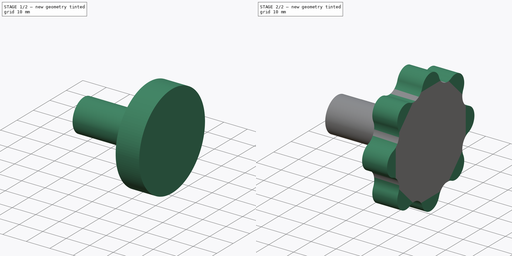
[diagram: build sequence overview — one tinted view per stage of 2, left to right]
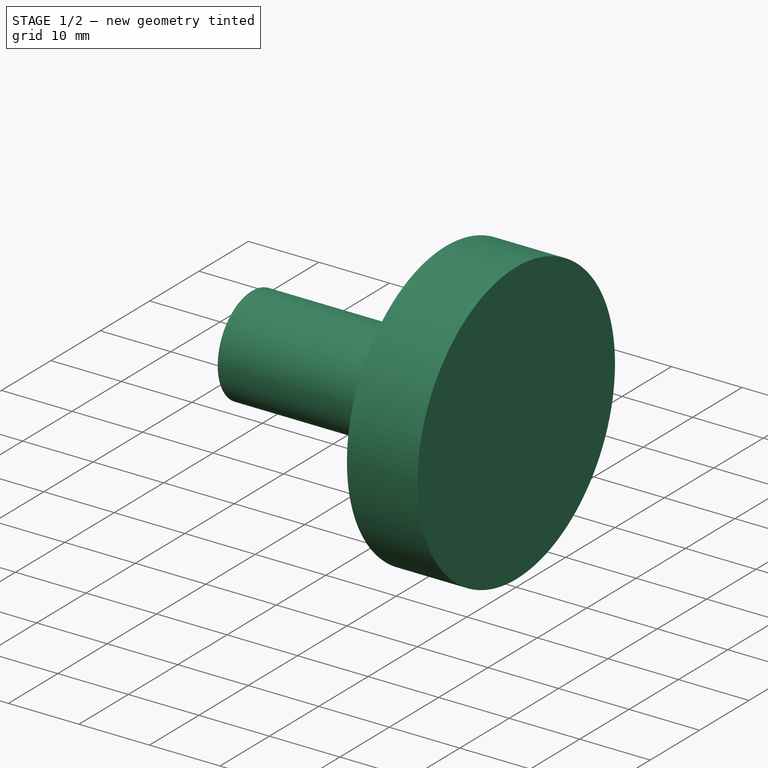
[diagram: stage 1 of 2 — iso view after this stage's code; geometry added in this stage tinted green]
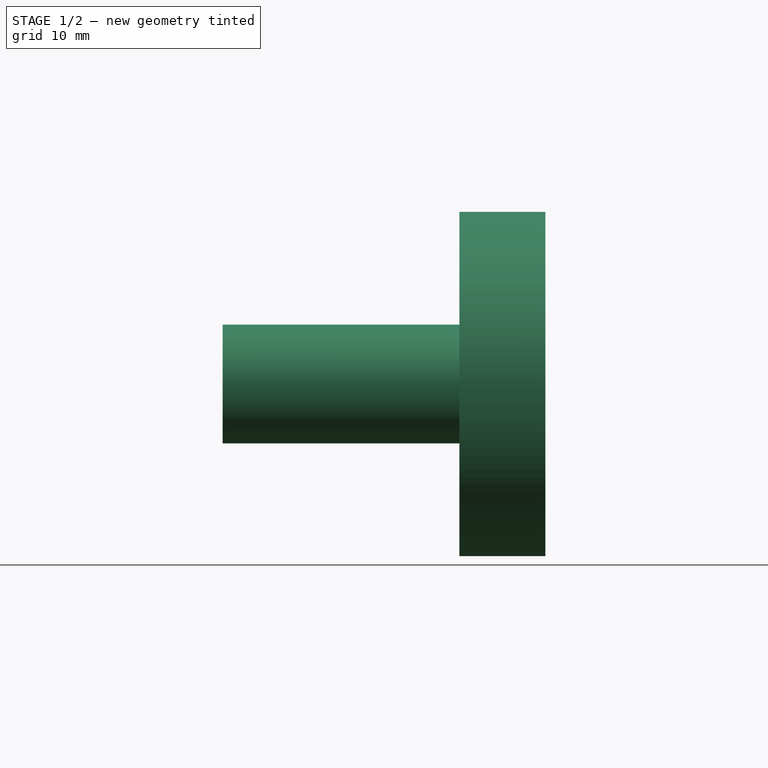
[diagram: stage 1 of 2 — front view after this stage's code; geometry added in this stage tinted green]
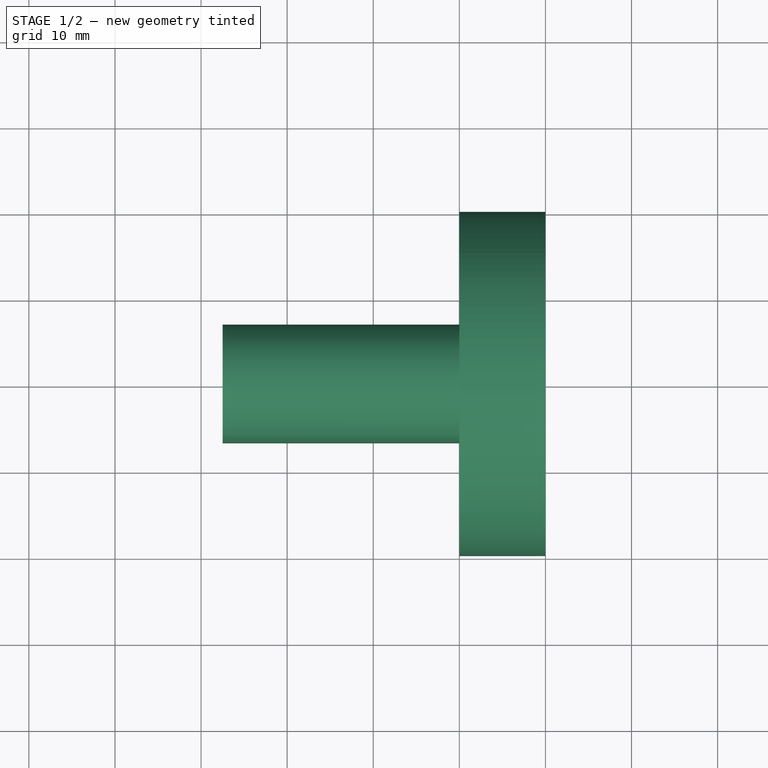
[diagram: stage 1 of 2 — top view after this stage's code; geometry added in this stage tinted green]
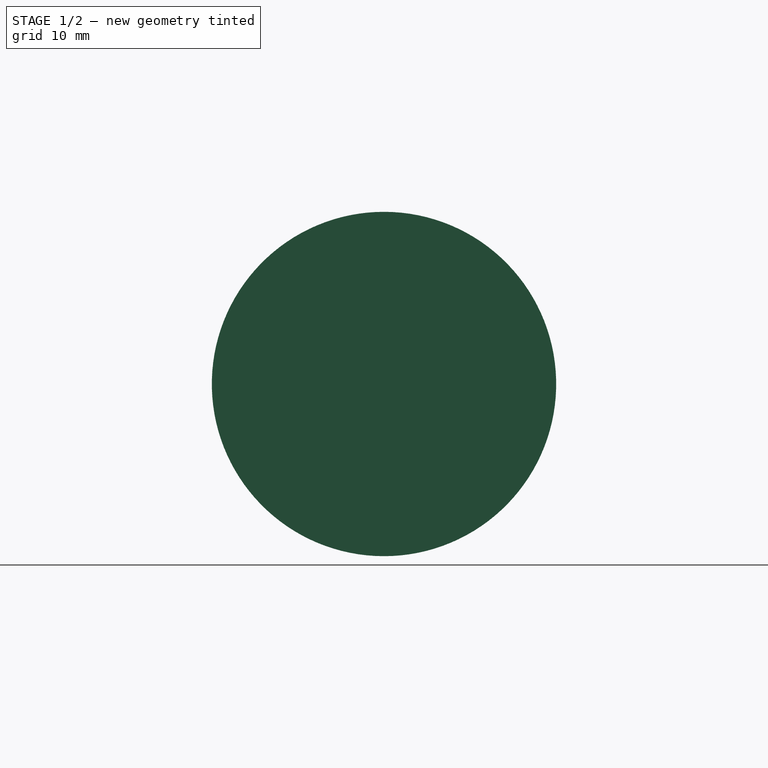
[diagram: stage 1 of 2 — right view after this stage's code; geometry added in this stage tinted green]
FCSTD DOCUMENT  (FreeCAD 1.1R39747 (Git))
Label: Резьба
License: All rights reserved
LicenseURL: https://en.wikipedia.org/wiki/All_rights_reserved
objects: Sketcher::SketchObject×2, App::Point×1, PartDesign::Revolution×1, PartDesign::Pad×1, PartDesign::Body×1
note: 11 computed .brp shape members not serialized (recipe doc carries the construction recipe); baked Part::Feature solids carry a one-line shape summary decoded from their .brp

FEATURE [App::Point] Origin001
  Role = Origin
FEATURE [Sketcher::SketchObject] Sketch
  ArcFitTolerance = 1e-06
  AttachmentSupport = -> [XZ_Plane]
  ExternalTypes = [0]
  FullyConstrained = true
  MakeInternals = false
  MapMode = 5
  Placement = pos=(0,0,0) rot=(1,0,0;1.5708rad)
  expr: Constraints[14] = 20.5 mm + 7 mm
  sketch-geometry (6):
    g0: LineSegment StartX=-37.5 StartY=6.9 StartZ=0 EndX=-10 EndY=6.9 EndZ=0
    g1: LineSegment StartX=-10 StartY=6.9 StartZ=0 EndX=-10 EndY=20 EndZ=0
    g2: LineSegment StartX=-10 StartY=20 StartZ=0 EndX=0 EndY=20 EndZ=0
    g3: LineSegment StartX=0 StartY=20 StartZ=0 EndX=0 EndY=0 EndZ=0
    g4: LineSegment StartX=-37.5 StartY=6.9 StartZ=0 EndX=-37.5 EndY=0 EndZ=0
    g5: LineSegment StartX=-37.5 StartY=0 StartZ=0 EndX=0 EndY=0 EndZ=0
  constraints (18):
    c: Coincident(g0,g1)
    c: Coincident(g1,g2)
    c: Horizontal(g2)
    c: Coincident(g2,g3)
    c: PointOnObject(g3,g-1)
    c: Coincident(g4,g5)
    c: Coincident(g5,g3)
    c: Horizontal(g5)
    c: Vertical(g4)
    c: Coincident(g0,g4)
    c: Horizontal(g0)
    c: Vertical(g1)
    c: DistanceX(g2,g2) = 10
    c: Vertical(g3)
    c: DistanceX(g0,g0) = 27.5
    c: PointOnObject(g2,g-2)
    c: Distance(g4,g4) = 6.9
    c: DistanceY(g3,g3) = 20
FEATURE [PartDesign::Revolution] Revolution
  Angle = 360
  Angle2 = 60
  Axis = (1,0,0)
  Base = (0,0,0)
  Placement = pos=(0,0,0) rot=(1,0,0;1.5708rad)
  Profile = -> Sketch
  ReferenceAxis = -> Sketch [H_Axis]
  Refine = true
  Suppressed = false
  Type = 0
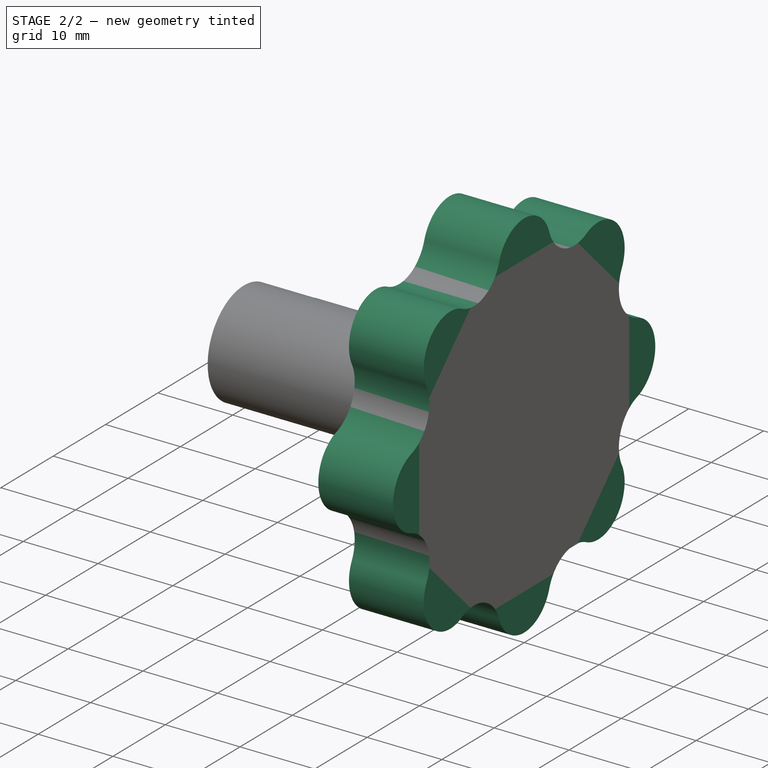
[diagram: stage 2 of 2 — iso view after this stage's code; geometry added in this stage tinted green]
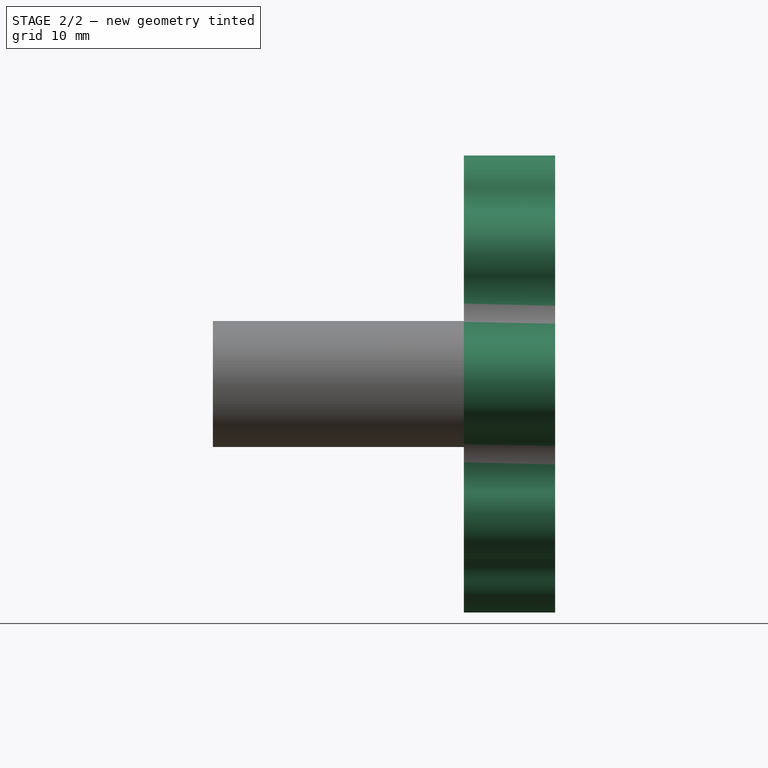
[diagram: stage 2 of 2 — front view after this stage's code; geometry added in this stage tinted green]
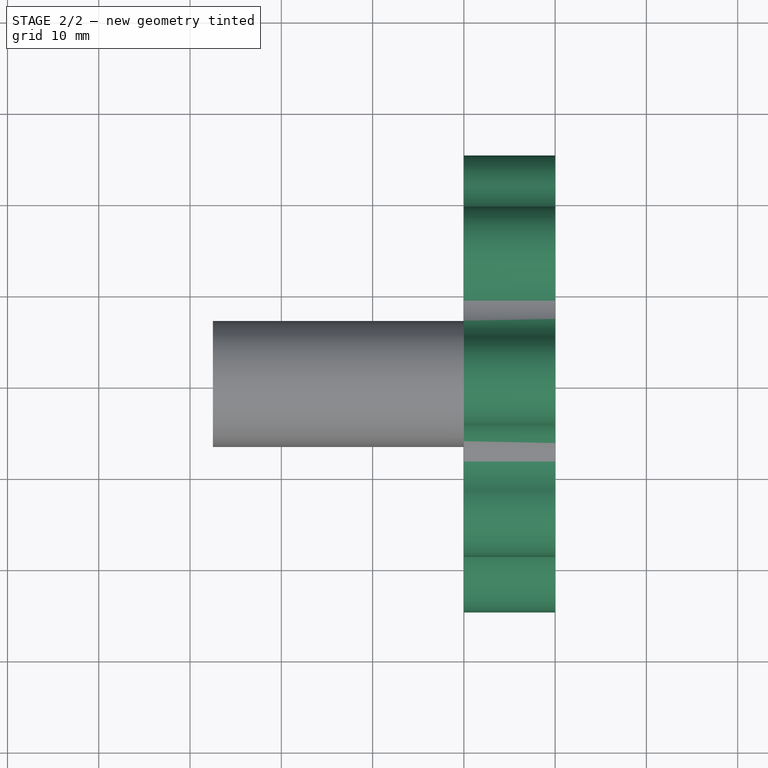
[diagram: stage 2 of 2 — top view after this stage's code; geometry added in this stage tinted green]
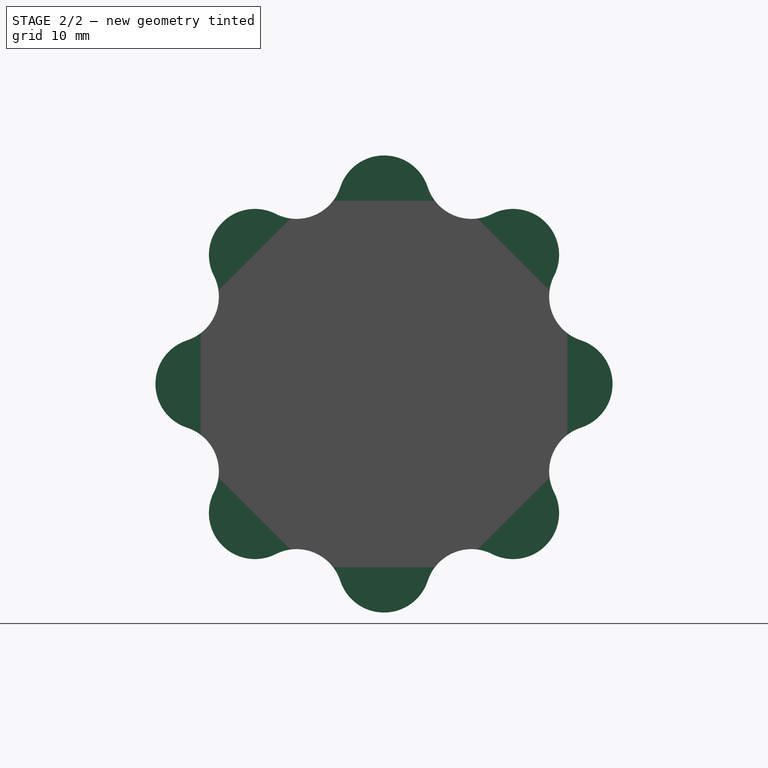
[diagram: stage 2 of 2 — right view after this stage's code; geometry added in this stage tinted green]
FEATURE [Sketcher::SketchObject] Sketch001
  ArcFitTolerance = 1e-06
  AttachmentSupport = -> [Revolution]
  ExternalGeometry = -> [Revolution]
  ExternalTypes = [0]
  FullyConstrained = true
  MakeInternals = false
  MapMode = 5
  Placement = pos=(0,0,0) rot=(0.707107,0,0.707107;3.14159rad)
  sketch-geometry (24):
    g0: ArcOfCircle CenterX=-20 CenterY=1.5e-15 CenterZ=0 NormalX=0 NormalY=0 NormalZ=1 AngleXU=0 Radius=5.04138 StartAngle=1.88699 EndAngle=4.3962
    g1: ArcOfCircle CenterX=-14.1421 CenterY=14.1421 CenterZ=0 NormalX=0 NormalY=0 NormalZ=1 AngleXU=0 Radius=5.04138 StartAngle=1.10159 EndAngle=3.6108
    g2: ArcOfCircle CenterX=0 CenterY=20 CenterZ=0 NormalX=0 NormalY=0 NormalZ=1 AngleXU=0 Radius=5.04138 StartAngle=0.316191 EndAngle=2.8254
    g3: ArcOfCircle CenterX=14.1421 CenterY=14.1421 CenterZ=0 NormalX=0 NormalY=0 NormalZ=1 AngleXU=0 Radius=5.04138 StartAngle=5.81398 EndAngle=8.32319
    g4: ArcOfCircle CenterX=20 CenterY=0 CenterZ=0 NormalX=0 NormalY=0 NormalZ=1 AngleXU=0 Radius=5.04138 StartAngle=5.02858 EndAngle=7.53779
    g5: ArcOfCircle CenterX=14.1421 CenterY=-14.1421 CenterZ=0 NormalX=0 NormalY=0 NormalZ=1 AngleXU=0 Radius=5.04138 StartAngle=4.24318 EndAngle=6.75239
    g6: ArcOfCircle CenterX=0 CenterY=-20 CenterZ=0 NormalX=0 NormalY=0 NormalZ=1 AngleXU=0 Radius=5.04138 StartAngle=3.45778 EndAngle=5.96699
    g7: ArcOfCircle CenterX=-14.1421 CenterY=-14.1421 CenterZ=0 NormalX=0 NormalY=0 NormalZ=1 AngleXU=0 Radius=5.04138 StartAngle=2.67239 EndAngle=5.1816
    g8: LineSegment [constr] StartX=-20 StartY=1.5e-15 StartZ=0 EndX=-14.1421 EndY=14.1421 EndZ=0
    g9: LineSegment [constr] StartX=-14.1421 StartY=14.1421 StartZ=0 EndX=0 EndY=20 EndZ=0
    g10: LineSegment [constr] StartX=0 StartY=20 StartZ=0 EndX=14.1421 EndY=14.1421 EndZ=0
    g11: LineSegment [constr] StartX=14.1421 StartY=14.1421 StartZ=0 EndX=20 EndY=0 EndZ=0
    g12: LineSegment [constr] StartX=20 StartY=0 StartZ=0 EndX=14.1421 EndY=-14.1421 EndZ=0
    g13: LineSegment [constr] StartX=14.1421 StartY=-14.1421 StartZ=0 EndX=0 EndY=-20 EndZ=0
    g14: LineSegment [constr] StartX=0 StartY=-20 StartZ=0 EndX=-14.1421 EndY=-14.1421 EndZ=0
    g15: LineSegment [constr] StartX=-14.1421 StartY=-14.1421 StartZ=0 EndX=-20 EndY=1.8e-15 EndZ=0
    g16: ArcOfCircle CenterX=-23.1352 CenterY=9.58292 CenterZ=0 NormalX=0 NormalY=0 NormalZ=1 AngleXU=0 Radius=5.04138 StartAngle=5.02858 EndAngle=6.75239
    g17: ArcOfCircle CenterX=-9.58292 CenterY=23.1352 CenterZ=0 NormalX=0 NormalY=0 NormalZ=1 AngleXU=0 Radius=5.04138 StartAngle=4.24318 EndAngle=5.96699
    g18: ArcOfCircle CenterX=9.58292 CenterY=23.1352 CenterZ=0 NormalX=0 NormalY=0 NormalZ=1 AngleXU=0 Radius=5.04138 StartAngle=3.45778 EndAngle=5.1816
    g19: ArcOfCircle CenterX=23.1352 CenterY=9.58292 CenterZ=0 NormalX=0 NormalY=0 NormalZ=1 AngleXU=0 Radius=5.04138 StartAngle=2.67239 EndAngle=4.3962
    g20: ArcOfCircle CenterX=23.1352 CenterY=-9.58292 CenterZ=0 NormalX=0 NormalY=0 NormalZ=1 AngleXU=0 Radius=5.04138 StartAngle=1.88699 EndAngle=3.6108
    g21: ArcOfCircle CenterX=9.58292 CenterY=-23.1352 CenterZ=0 NormalX=0 NormalY=0 NormalZ=1 AngleXU=0 Radius=5.04138 StartAngle=1.10159 EndAngle=2.8254
    g22: ArcOfCircle CenterX=-9.58292 CenterY=-23.1352 CenterZ=0 NormalX=0 NormalY=0 NormalZ=1 AngleXU=0 Radius=5.04138 StartAngle=0.316191 EndAngle=2.04
    g23: ArcOfCircle CenterX=-23.1352 CenterY=-9.58292 CenterZ=0 NormalX=0 NormalY=0 NormalZ=1 AngleXU=0 Radius=5.04138 StartAngle=5.81398 EndAngle=7.53779
  constraints (64):
    c: PointOnObject(g0,g-3)
    c: PointOnObject(g1,g-3)
    c: PointOnObject(g2,g-3)
    c: PointOnObject(g3,g-3)
    c: PointOnObject(g4,g-3)
    c: PointOnObject(g5,g-3)
    c: PointOnObject(g6,g-3)
    c: PointOnObject(g7,g-3)
    c: PointOnObject(g6,g-2)
    c: Coincident(g8,g0)
    c: Coincident(g8,g1)
    c: Coincident(g8,g9)
    c: Coincident(g9,g2)
    c: Coincident(g9,g10)
    c: Coincident(g10,g3)
    c: Coincident(g10,g11)
    c: Coincident(g11,g4)
    c: Coincident(g11,g12)
    c: Coincident(g12,g5)
    c: Coincident(g12,g13)
    c: Coincident(g13,g6)
    c: Coincident(g13,g14)
    c: Coincident(g14,g7)
    c: Coincident(g14,g15)
    c: Coincident(g15,g8)
    c: Equal(g14,g15)
    c: Equal(g15,g8)
    c: Equal(g8,g9)
    c: Equal(g9,g10)
    c: Equal(g10,g11)
    c: Equal(g11,g12)
    c: Equal(g12,g13)
    c: Tangent(g23,g7) = 1.5708
    c: Tangent(g23,g0) = 1.5708
    c: Tangent(g16,g0) = 1.5708
    c: Tangent(g16,g1) = 1.5708
    c: Tangent(g17,g1) = 1.5708
    c: Tangent(g17,g2) = 1.5708
    c: Tangent(g18,g2) = 1.5708
    c: Tangent(g18,g3) = 1.5708
    c: Tangent(g19,g3) = 1.5708
    c: Tangent(g19,g4) = 1.5708
    c: Tangent(g20,g4) = 1.5708
    c: Tangent(g20,g5) = 1.5708
    c: Tangent(g21,g5) = 1.5708
    c: Tangent(g21,g6) = 1.5708
    c: Tangent(g22,g6) = 1.5708
    c: Tangent(g22,g7) = 1.5708
    c: Equal(g7,g23)
    c: Equal(g23,g0)
    c: Equal(g0,g16)
    c: Equal(g16,g1)
    c: Equal(g1,g17)
    c: Equal(g17,g2)
    c: Equal(g2,g18)
    c: Equal(g18,g3)
    c: Equal(g3,g19)
    c: Equal(g19,g4)
    c: Equal(g4,g20)
    c: Equal(g20,g5)
    c: Equal(g5,g21)
    c: Equal(g21,g6)
    c: Equal(g6,g22)
    c: Tangent(g17,g-3)
FEATURE [PartDesign::Pad] Pad
  BaseFeature = -> Revolution
  Direction = (1,0,-2e-16)
  Length = 10
  Length2 = 10
  Placement = pos=(0,0,0) rot=(1,0,0;1.5708rad)
  Profile = -> Sketch001
  ReferenceAxis = -> Sketch001 [N_Axis]
  Refine = true
  Reversed = true
  Suppressed = false
  Type = 0
FEATURE [PartDesign::Body] Body  label="Тело"
  AllowCompound = false
  Group = -> [Sketch,Revolution,Sketch001,Pad]
  Origin = -> Origin
  Tip = -> Pad
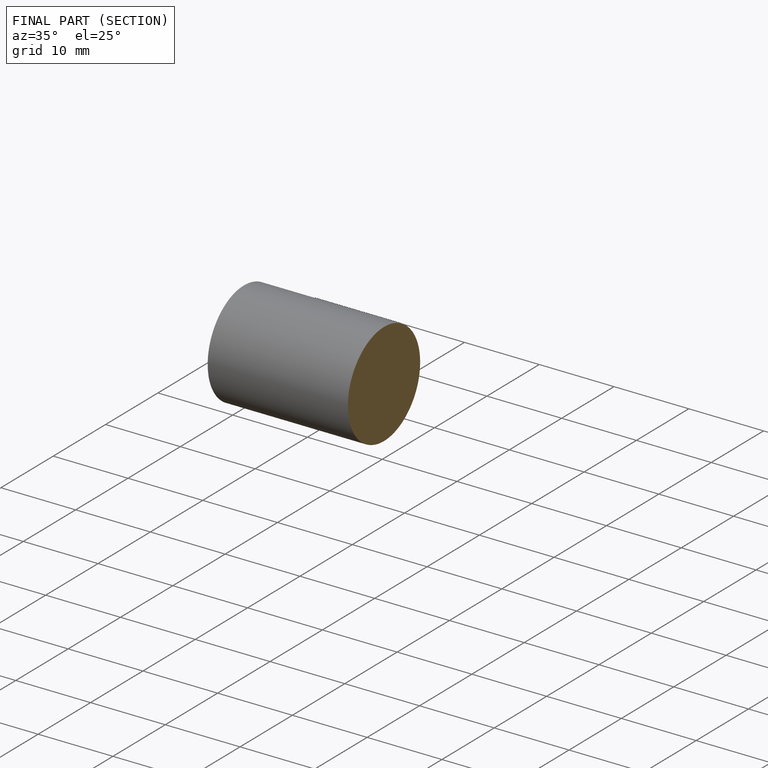
[diagram: finished part — half-section view (interior)]
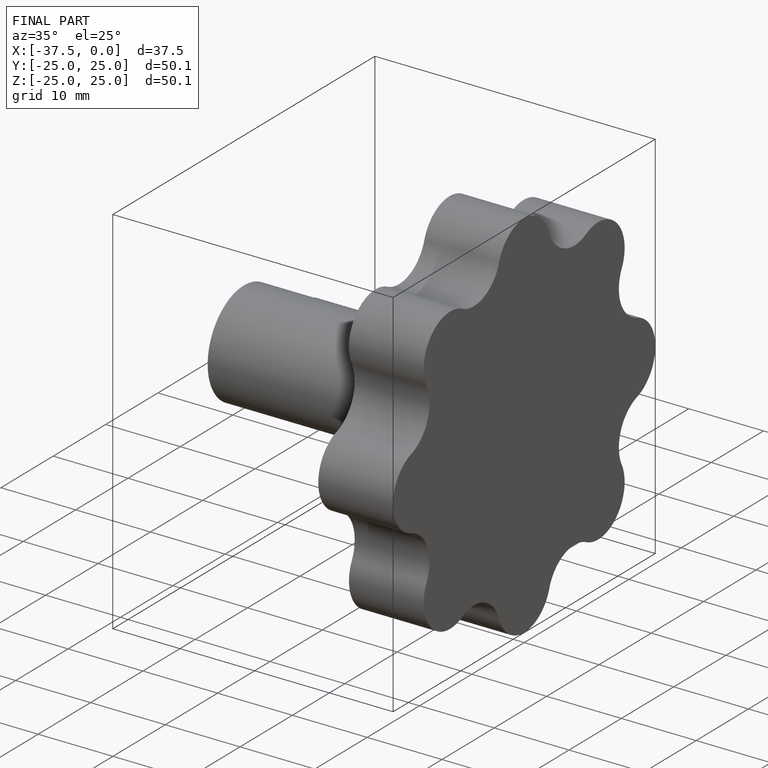
[diagram: finished part — iso view with bounding-box wireframe]
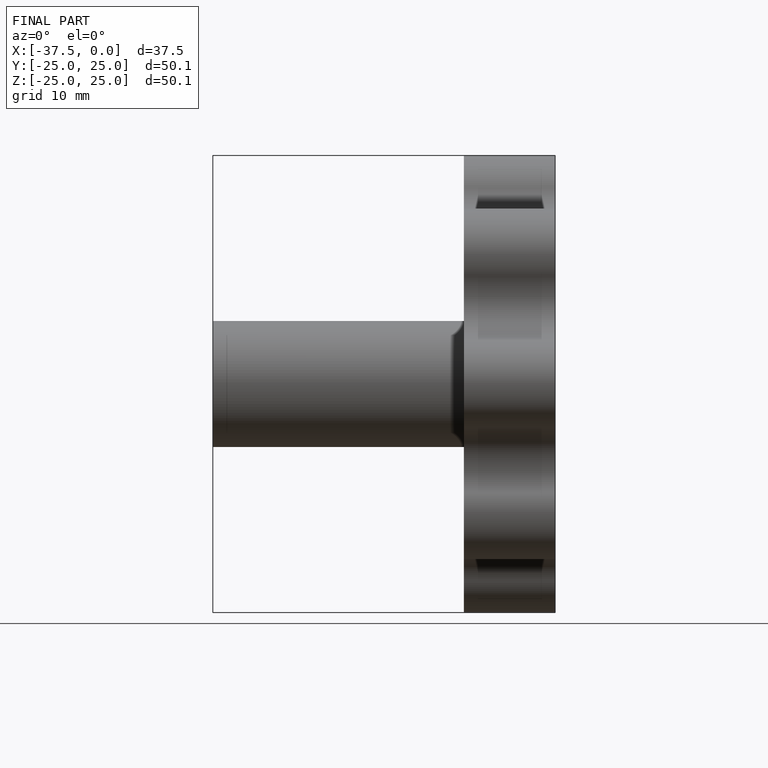
[diagram: finished part — front view with bounding-box wireframe]
